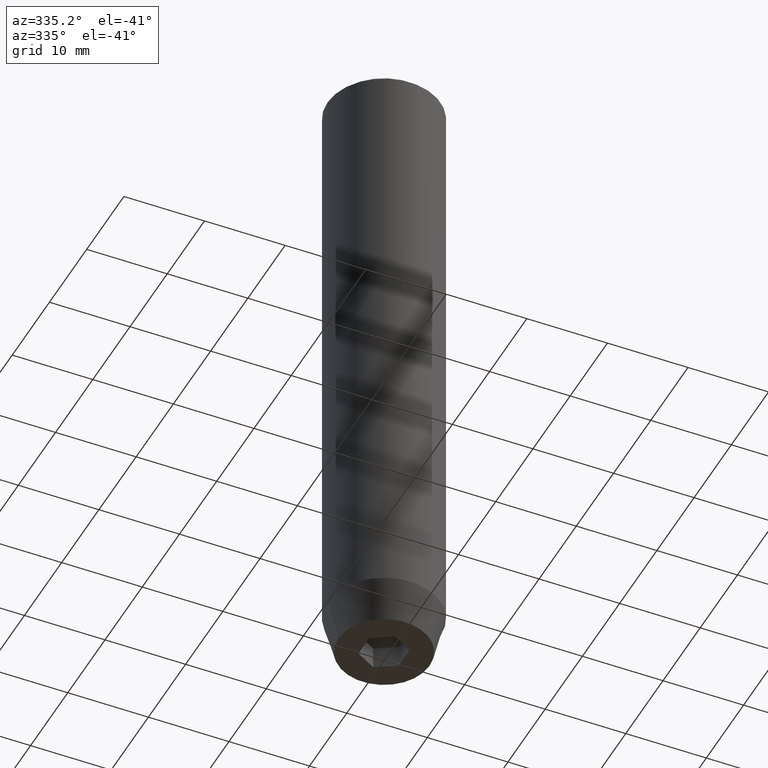
[diagram: clean part render]
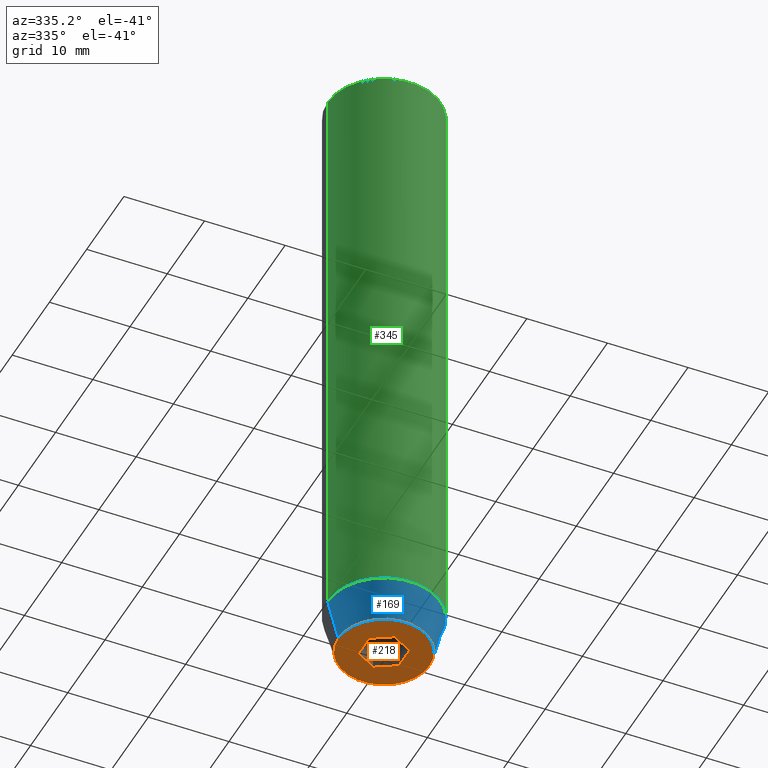
[diagram: same view with three faces highlighted in distinct colors, each labeled with its STEP entity id]
A machine part, auxiliary view with three faces highlighted in distinct colors.
Their STEP definitions:

[orange] entity #218 — the highlighted planar face has unit normal (0, 0, -1).
#10 = LINE ( 'NONE', #192, #479 ) ;
#16 = EDGE_LOOP ( 'NONE', ( #370, #559 ) ) ;
#21 = VERTEX_POINT ( 'NONE', #256 ) ;
#22 = CARTESIAN_POINT ( 'NONE',  ( 1.249999999999999778, -2.165063509461096380, -80.00000000000001421 ) ) ;
#38 = CARTESIAN_POINT ( 'NONE',  ( 2.500000000000000000, 0.000000000000000000, -80.00000000000001421 ) ) ;
#45 = CARTESIAN_POINT ( 'NONE',  ( -1.249999999999999556, -2.165063509461096825, -80.00000000000001421 ) ) ;
#46 = CARTESIAN_POINT ( 'NONE',  ( 0.000000000000000000, -2.886751345948128211, -80.00000000000001421 ) ) ;
#61 = VECTOR ( 'NONE', #561, 999.9999999999998863 ) ;
#66 = VERTEX_POINT ( 'NONE', #386 ) ;
#71 = AXIS2_PLACEMENT_3D ( 'NONE', #456, #538, #312 ) ;
#75 = CARTESIAN_POINT ( 'NONE',  ( -2.500000000000000444, 0.000000000000000000, -80.00000000000001421 ) ) ;
#104 = DIRECTION ( 'NONE',  ( 1.000000000000000000, 0.000000000000000000, 0.000000000000000000 ) ) ;
#114 = EDGE_CURVE ( 'NONE', #278, #327, #482, .T. ) ;
#126 = DIRECTION ( 'NONE',  ( 0.000000000000000000, 1.000000000000000000, 0.000000000000000000 ) ) ;
#134 = EDGE_LOOP ( 'NONE', ( #143, #385, #246, #284, #185, #199 ) ) ;
#141 = EDGE_CURVE ( 'NONE', #514, #255, #444, .T. ) ;
#143 = ORIENTED_EDGE ( 'NONE', *, *, #516, .F. ) ;
#144 = DIRECTION ( 'NONE',  ( -0.000000000000000000, -0.000000000000000000, 1.000000000000000000 ) ) ;
#159 = VERTEX_POINT ( 'NONE', #46 ) ;
#180 = LINE ( 'NONE', #45, #581 ) ;
#181 = VECTOR ( 'NONE', #126, 1000.000000000000000 ) ;
#185 = ORIENTED_EDGE ( 'NONE', *, *, #141, .F. ) ;
#187 = DIRECTION ( 'NONE',  ( 0.000000000000000000, 0.000000000000000000, -1.000000000000000000 ) ) ;
#189 = CARTESIAN_POINT ( 'NONE',  ( 2.500000000000000000, 1.443375672974064328, -80.00000000000001421 ) ) ;
#192 = CARTESIAN_POINT ( 'NONE',  ( -1.250000000000000444, 2.165063509461097269, -80.00000000000001421 ) ) ;
#194 = VECTOR ( 'NONE', #215, 1000.000000000000000 ) ;
#199 = ORIENTED_EDGE ( 'NONE', *, *, #472, .F. ) ;
#215 = DIRECTION ( 'NONE',  ( 0.000000000000000000, -1.000000000000000000, 0.000000000000000000 ) ) ;
#218 = ADVANCED_FACE ( 'NONE', ( #548, #365 ), #408, .T. ) ;
#233 = LINE ( 'NONE', #414, #421 ) ;
#242 = LINE ( 'NONE', #22, #61 ) ;
#246 = ORIENTED_EDGE ( 'NONE', *, *, #522, .F. ) ;
#255 = VERTEX_POINT ( 'NONE', #268 ) ;
#256 = CARTESIAN_POINT ( 'NONE',  ( 5.660254037844386410, 0.000000000000000000, -80.00000000000001421 ) ) ;
#257 = AXIS2_PLACEMENT_3D ( 'NONE', #267, #144, #104 ) ;
#267 = CARTESIAN_POINT ( 'NONE',  ( 0.000000000000000000, 0.000000000000000000, -80.00000000000001421 ) ) ;
#268 = CARTESIAN_POINT ( 'NONE',  ( 2.500000000000000000, -1.443375672974064106, -80.00000000000001421 ) ) ;
#278 = VERTEX_POINT ( 'NONE', #305 ) ;
#279 = EDGE_CURVE ( 'NONE', #66, #21, #568, .T. ) ;
#284 = ORIENTED_EDGE ( 'NONE', *, *, #331, .F. ) ;
#305 = CARTESIAN_POINT ( 'NONE',  ( -2.500000000000000444, -1.443375672974064328, -80.00000000000001421 ) ) ;
#309 = CIRCLE ( 'NONE', #257, 5.660254037844386410 ) ;
#312 = DIRECTION ( 'NONE',  ( 1.000000000000000000, 0.000000000000000000, 0.000000000000000000 ) ) ;
#327 = VERTEX_POINT ( 'NONE', #466 ) ;
#331 = EDGE_CURVE ( 'NONE', #255, #159, #242, .T. ) ;
#356 = DIRECTION ( 'NONE',  ( -0.8660254037844387076, 0.4999999999999998890, 0.000000000000000000 ) ) ;
#358 = VERTEX_POINT ( 'NONE', #415 ) ;
#359 = AXIS2_PLACEMENT_3D ( 'NONE', #554, #187, #449 ) ;
#365 = FACE_OUTER_BOUND ( 'NONE', #16, .T. ) ;
#368 = DIRECTION ( 'NONE',  ( 0.8660254037844385966, -0.5000000000000001110, 0.000000000000000000 ) ) ;
#370 = ORIENTED_EDGE ( 'NONE', *, *, #544, .F. ) ;
#385 = ORIENTED_EDGE ( 'NONE', *, *, #114, .F. ) ;
#386 = CARTESIAN_POINT ( 'NONE',  ( -5.660254037844386410, 7.752169791919240742E-16, -80.00000000000001421 ) ) ;
#401 = DIRECTION ( 'NONE',  ( 0.8660254037844385966, 0.5000000000000001110, 0.000000000000000000 ) ) ;
#408 = PLANE ( 'NONE',  #359 ) ;
#414 = CARTESIAN_POINT ( 'NONE',  ( 1.250000000000000222, 2.165063509461096825, -80.00000000000001421 ) ) ;
#415 = CARTESIAN_POINT ( 'NONE',  ( 0.000000000000000000, 2.886751345948129099, -80.00000000000001421 ) ) ;
#421 = VECTOR ( 'NONE', #368, 1000.000000000000000 ) ;
#444 = LINE ( 'NONE', #38, #194 ) ;
#449 = DIRECTION ( 'NONE',  ( -1.000000000000000000, 0.000000000000000000, -0.000000000000000000 ) ) ;
#456 = CARTESIAN_POINT ( 'NONE',  ( 0.000000000000000000, 0.000000000000000000, -80.00000000000001421 ) ) ;
#466 = CARTESIAN_POINT ( 'NONE',  ( -2.500000000000000444, 1.443375672974064772, -80.00000000000001421 ) ) ;
#472 = EDGE_CURVE ( 'NONE', #358, #514, #233, .T. ) ;
#479 = VECTOR ( 'NONE', #401, 1000.000000000000000 ) ;
#482 = LINE ( 'NONE', #75, #181 ) ;
#514 = VERTEX_POINT ( 'NONE', #189 ) ;
#516 = EDGE_CURVE ( 'NONE', #327, #358, #10, .T. ) ;
#522 = EDGE_CURVE ( 'NONE', #159, #278, #180, .T. ) ;
#538 = DIRECTION ( 'NONE',  ( -0.000000000000000000, -0.000000000000000000, 1.000000000000000000 ) ) ;
#544 = EDGE_CURVE ( 'NONE', #21, #66, #309, .T. ) ;
#548 = FACE_BOUND ( 'NONE', #134, .T. ) ;
#554 = CARTESIAN_POINT ( 'NONE',  ( 0.000000000000000000, 5.660254037844386410, -80.00000000000001421 ) ) ;
#559 = ORIENTED_EDGE ( 'NONE', *, *, #279, .F. ) ;
#561 = DIRECTION ( 'NONE',  ( -0.8660254037844387076, -0.5000000000000001110, 0.000000000000000000 ) ) ;
#568 = CIRCLE ( 'NONE', #71, 5.660254037844386410 ) ;
#581 = VECTOR ( 'NONE', #356, 1000.000000000000114 ) ;

[blue] entity #169 — the highlighted conical surface has half-angle 15 deg.
#6 = ORIENTED_EDGE ( 'NONE', *, *, #507, .F. ) ;
#13 = AXIS2_PLACEMENT_3D ( 'NONE', #178, #43, #88 ) ;
#21 = VERTEX_POINT ( 'NONE', #256 ) ;
#27 = EDGE_CURVE ( 'NONE', #316, #555, #556, .T. ) ;
#32 = AXIS2_PLACEMENT_3D ( 'NONE', #84, #258, #123 ) ;
#41 = CARTESIAN_POINT ( 'NONE',  ( -7.000000000000000000, 8.572527594031473190E-16, -75.00000000000001421 ) ) ;
#43 = DIRECTION ( 'NONE',  ( -0.000000000000000000, -0.000000000000000000, 1.000000000000000000 ) ) ;
#48 = CARTESIAN_POINT ( 'NONE',  ( 7.000000000000000000, 0.000000000000000000, -75.00000000000001421 ) ) ;
#66 = VERTEX_POINT ( 'NONE', #386 ) ;
#71 = AXIS2_PLACEMENT_3D ( 'NONE', #456, #538, #312 ) ;
#84 = CARTESIAN_POINT ( 'NONE',  ( 0.000000000000000000, 0.000000000000000000, -75.00000000000001421 ) ) ;
#88 = DIRECTION ( 'NONE',  ( 1.000000000000000000, 0.000000000000000000, 0.000000000000000000 ) ) ;
#115 = CARTESIAN_POINT ( 'NONE',  ( 7.000000000000000000, 0.000000000000000000, -75.00000000000001421 ) ) ;
#123 = DIRECTION ( 'NONE',  ( 1.000000000000000000, 0.000000000000000000, 0.000000000000000000 ) ) ;
#136 = DIRECTION ( 'NONE',  ( -0.2588190451025205729, 3.169619151431761860E-17, 0.9659258262890683122 ) ) ;
#169 = ADVANCED_FACE ( 'NONE', ( #222 ), #447, .T. ) ;
#178 = CARTESIAN_POINT ( 'NONE',  ( 0.000000000000000000, 0.000000000000000000, -75.00000000000001421 ) ) ;
#193 = DIRECTION ( 'NONE',  ( 0.2588190451025205729, 0.000000000000000000, 0.9659258262890683122 ) ) ;
#212 = VECTOR ( 'NONE', #136, 1000.000000000000114 ) ;
#220 = ORIENTED_EDGE ( 'NONE', *, *, #27, .F. ) ;
#221 = CARTESIAN_POINT ( 'NONE',  ( -7.000000000000000000, 8.572527594031473190E-16, -75.00000000000001421 ) ) ;
#222 = FACE_OUTER_BOUND ( 'NONE', #549, .T. ) ;
#256 = CARTESIAN_POINT ( 'NONE',  ( 5.660254037844386410, 0.000000000000000000, -80.00000000000001421 ) ) ;
#258 = DIRECTION ( 'NONE',  ( -0.000000000000000000, -0.000000000000000000, 1.000000000000000000 ) ) ;
#279 = EDGE_CURVE ( 'NONE', #66, #21, #568, .T. ) ;
#282 = LINE ( 'NONE', #115, #397 ) ;
#312 = DIRECTION ( 'NONE',  ( 1.000000000000000000, 0.000000000000000000, 0.000000000000000000 ) ) ;
#316 = VERTEX_POINT ( 'NONE', #41 ) ;
#330 = ORIENTED_EDGE ( 'NONE', *, *, #279, .T. ) ;
#378 = ORIENTED_EDGE ( 'NONE', *, *, #439, .T. ) ;
#386 = CARTESIAN_POINT ( 'NONE',  ( -5.660254037844386410, 7.752169791919240742E-16, -80.00000000000001421 ) ) ;
#397 = VECTOR ( 'NONE', #193, 1000.000000000000114 ) ;
#439 = EDGE_CURVE ( 'NONE', #21, #555, #282, .T. ) ;
#447 = CONICAL_SURFACE ( 'NONE', #13, 7.000000000000000000, 0.2617993877991492413 ) ;
#456 = CARTESIAN_POINT ( 'NONE',  ( 0.000000000000000000, 0.000000000000000000, -80.00000000000001421 ) ) ;
#507 = EDGE_CURVE ( 'NONE', #66, #316, #547, .T. ) ;
#538 = DIRECTION ( 'NONE',  ( -0.000000000000000000, -0.000000000000000000, 1.000000000000000000 ) ) ;
#547 = LINE ( 'NONE', #221, #212 ) ;
#549 = EDGE_LOOP ( 'NONE', ( #6, #330, #378, #220 ) ) ;
#555 = VERTEX_POINT ( 'NONE', #48 ) ;
#556 = CIRCLE ( 'NONE', #32, 7.000000000000000000 ) ;
#568 = CIRCLE ( 'NONE', #71, 5.660254037844386410 ) ;

[green] entity #345 — the highlighted cylindrical surface (partial cylindrical patch) has radius 7 mm, axis along (-0, -0, 1).
#9 = ORIENTED_EDGE ( 'NONE', *, *, #253, .F. ) ;
#27 = EDGE_CURVE ( 'NONE', #316, #555, #556, .T. ) ;
#32 = AXIS2_PLACEMENT_3D ( 'NONE', #84, #258, #123 ) ;
#41 = CARTESIAN_POINT ( 'NONE',  ( -7.000000000000000000, 8.572527594031473190E-16, -75.00000000000001421 ) ) ;
#48 = CARTESIAN_POINT ( 'NONE',  ( 7.000000000000000000, 0.000000000000000000, -75.00000000000001421 ) ) ;
#52 = ORIENTED_EDGE ( 'NONE', *, *, #27, .T. ) ;
#60 = DIRECTION ( 'NONE',  ( 1.000000000000000000, 0.000000000000000000, 0.000000000000000000 ) ) ;
#65 = FACE_OUTER_BOUND ( 'NONE', #423, .T. ) ;
#84 = CARTESIAN_POINT ( 'NONE',  ( 0.000000000000000000, 0.000000000000000000, -75.00000000000001421 ) ) ;
#94 = CARTESIAN_POINT ( 'NONE',  ( 7.000000000000000000, 0.000000000000000000, 0.000000000000000000 ) ) ;
#123 = DIRECTION ( 'NONE',  ( 1.000000000000000000, 0.000000000000000000, 0.000000000000000000 ) ) ;
#137 = DIRECTION ( 'NONE',  ( 1.000000000000000000, 0.000000000000000000, 0.000000000000000000 ) ) ;
#145 = EDGE_CURVE ( 'NONE', #461, #412, #211, .T. ) ;
#151 = CARTESIAN_POINT ( 'NONE',  ( 0.000000000000000000, 0.000000000000000000, 0.000000000000000000 ) ) ;
#173 = EDGE_CURVE ( 'NONE', #555, #461, #216, .T. ) ;
#175 = CARTESIAN_POINT ( 'NONE',  ( 0.000000000000000000, 0.000000000000000000, -0.5000000000000117684 ) ) ;
#176 = LINE ( 'NONE', #502, #281 ) ;
#183 = DIRECTION ( 'NONE',  ( -0.000000000000000000, -0.000000000000000000, 1.000000000000000000 ) ) ;
#211 = CIRCLE ( 'NONE', #438, 7.000000000000000000 ) ;
#216 = LINE ( 'NONE', #94, #543 ) ;
#248 = ORIENTED_EDGE ( 'NONE', *, *, #173, .T. ) ;
#253 = EDGE_CURVE ( 'NONE', #316, #412, #176, .T. ) ;
#258 = DIRECTION ( 'NONE',  ( -0.000000000000000000, -0.000000000000000000, 1.000000000000000000 ) ) ;
#264 = ORIENTED_EDGE ( 'NONE', *, *, #145, .T. ) ;
#274 = CARTESIAN_POINT ( 'NONE',  ( 7.000000000000000000, 0.000000000000000000, -0.5000000000000117684 ) ) ;
#281 = VECTOR ( 'NONE', #354, 1000.000000000000000 ) ;
#287 = DIRECTION ( 'NONE',  ( -0.000000000000000000, -0.000000000000000000, 1.000000000000000000 ) ) ;
#316 = VERTEX_POINT ( 'NONE', #41 ) ;
#345 = ADVANCED_FACE ( 'NONE', ( #65 ), #510, .T. ) ;
#352 = DIRECTION ( 'NONE',  ( 0.000000000000000000, 0.000000000000000000, -1.000000000000000000 ) ) ;
#354 = DIRECTION ( 'NONE',  ( -0.000000000000000000, -0.000000000000000000, 1.000000000000000000 ) ) ;
#412 = VERTEX_POINT ( 'NONE', #565 ) ;
#423 = EDGE_LOOP ( 'NONE', ( #9, #52, #248, #264 ) ) ;
#438 = AXIS2_PLACEMENT_3D ( 'NONE', #175, #352, #137 ) ;
#461 = VERTEX_POINT ( 'NONE', #274 ) ;
#502 = CARTESIAN_POINT ( 'NONE',  ( -7.000000000000000000, 8.572527594031473190E-16, 0.000000000000000000 ) ) ;
#504 = AXIS2_PLACEMENT_3D ( 'NONE', #151, #287, #60 ) ;
#510 = CYLINDRICAL_SURFACE ( 'NONE', #504, 7.000000000000000000 ) ;
#543 = VECTOR ( 'NONE', #183, 1000.000000000000000 ) ;
#555 = VERTEX_POINT ( 'NONE', #48 ) ;
#556 = CIRCLE ( 'NONE', #32, 7.000000000000000000 ) ;
#565 = CARTESIAN_POINT ( 'NONE',  ( -7.000000000000000000, 8.572527594031473190E-16, -0.5000000000000117684 ) ) ;